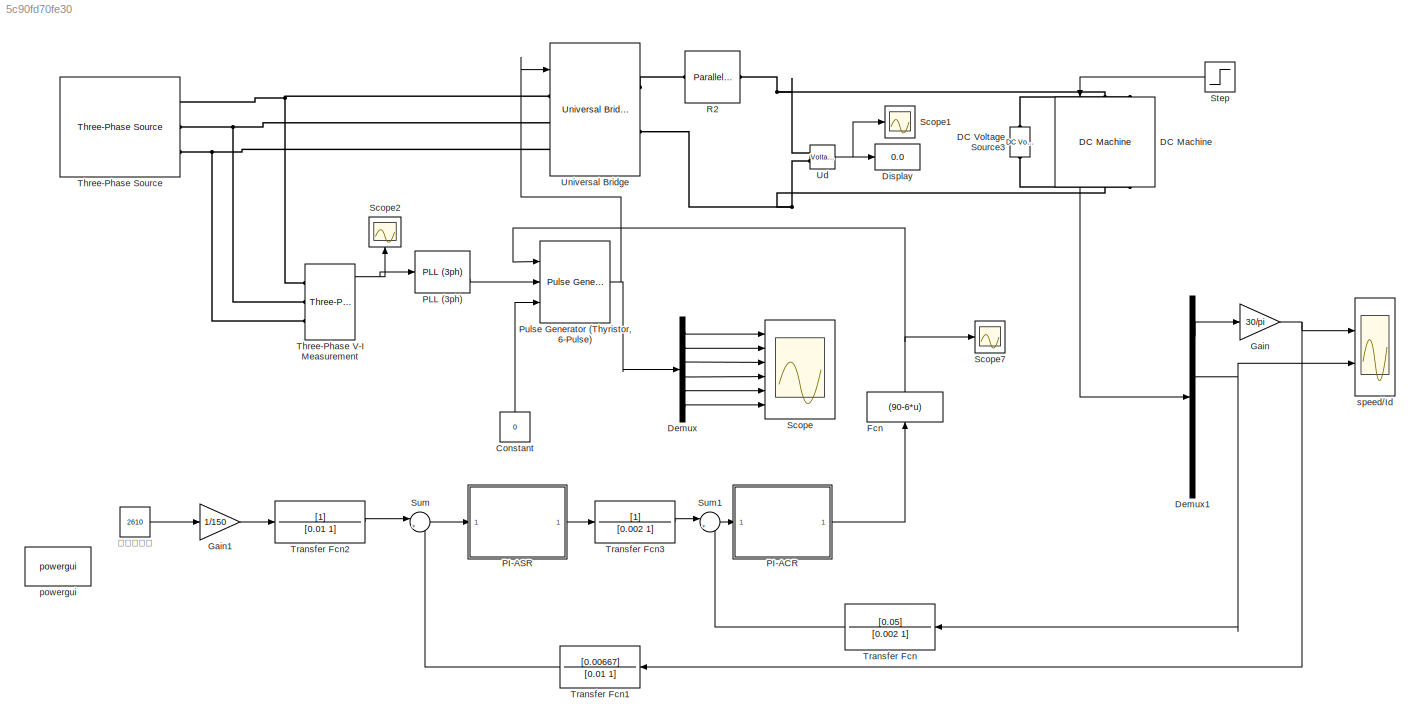
MODEL slx_5c90fd70fe30
KIND model
CONFIG AbsTol = auto
CONFIG EnableMultiTasking = on
CONFIG FixedStep = auto
CONFIG MaxStep = auto
CONFIG MinStep = auto
CONFIG RelTol = 1e-3
CONFIG SampleTimeConstraint = Unconstrained
CONFIG SolverName = ode23tb
CONFIG StartTime = 0.0
CONFIG StopTime = 6
BLOCK [Constant] Constant
  NameLocation = right
  Value = 0
BLOCK [Reference] DC Machine  REF=spsDCMachineLib/DC Machine
  NameLocation = left
  Ports = [1, 1, 0, 0, 0, 2, 2]
  SourceBlock = spsDCMachineLib/DC Machine
  SourceProductBaseCode = PS
  SourceType = DC machine
BLOCK [Reference] DC Voltage Source3  REF=spsDCVoltageSourceLib/DC Voltage Source
  NameLocation = left
  Ports = [0, 0, 0, 0, 0, 1, 1]
  SourceBlock = spsDCVoltageSourceLib/DC Voltage Source
  SourceProductBaseCode = PS
  SourceType = DC Voltage Source
BLOCK [Demux] Demux
  Outputs = 6
  Ports = [1, 6]
BLOCK [Demux] Demux1
  Ports = [1, 4]
BLOCK [Display] Display
  Decimation = 1
  Ports = [1]
BLOCK [Fcn] Fcn
  Expr = (90-6*u)
  NameLocation = right
BLOCK [Gain] Gain
  Gain = 30/pi
BLOCK [Gain] Gain1
  Gain = 1/150
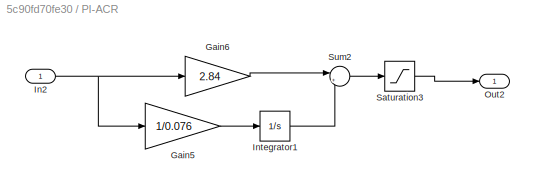
BLOCK [SubSystem] PI-ACR
  Ports = [1, 1]
  RequestExecContextInheritance = off
BLOCK [Gain] PI-ACR/Gain5
  Gain = 1/0.076
BLOCK [Gain] PI-ACR/Gain6
  Gain = 2.84
BLOCK [Inport] PI-ACR/In2
BLOCK [Integrator] PI-ACR/Integrator1
  LimitOutput = on
  LowerSaturationLimit = -12
  Ports = [1, 1]
  UpperSaturationLimit = 12
BLOCK [Outport] PI-ACR/Out2
  VectorParamsAs1DForOutWhenUnconnected = off
BLOCK [Saturate] PI-ACR/Saturation3
  LowerLimit = -10
  UpperLimit = 10
BLOCK [Sum] PI-ACR/Sum2
  Inputs = |++
  Ports = [2, 1]
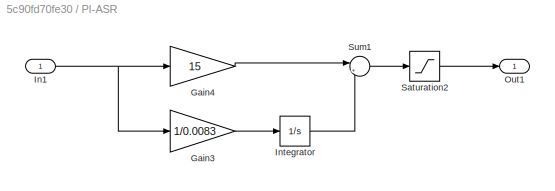
BLOCK [SubSystem] PI-ASR
  Ports = [1, 1]
  RequestExecContextInheritance = off
BLOCK [Gain] PI-ASR/Gain3
  Gain = 1/0.0083
BLOCK [Gain] PI-ASR/Gain4
  Gain = 15
BLOCK [Inport] PI-ASR/In1
BLOCK [Integrator] PI-ASR/Integrator
  LimitOutput = on
  LowerSaturationLimit = -12
  Ports = [1, 1]
  UpperSaturationLimit = 12
BLOCK [Outport] PI-ASR/Out1
  VectorParamsAs1DForOutWhenUnconnected = off
BLOCK [Saturate] PI-ASR/Saturation2
  LowerLimit = -10
  UpperLimit = 10
BLOCK [Sum] PI-ASR/Sum1
  Inputs = |++
  Ports = [2, 1]
BLOCK [Reference] PLL (3ph)  REF=spsPLL3phLib/PLL
(3ph)
  Ports = [1, 2]
  SourceBlock = spsPLL3phLib/PLL\n(3ph)
  SourceProductBaseCode = PS
  SourceType = PLL (3ph)
BLOCK [Reference] Pulse Generator (Thyristor, 6-Pulse)  REF=spsPulseGeneratorThyristor12PulseLib/Pulse Generator
(Thyristor, 12-Pulse)
  Ports = [3, 1]
  SourceBlock = spsPulseGeneratorThyristor12PulseLib/Pulse Generator\n(Thyristor, 12-Pulse)
  SourceProductBaseCode = PS
  SourceType = Pulse Generator (Thyristor)
BLOCK [Reference] R2  REF=spsParallelRLCBranchLib/Parallel RLC Branch
  AttributesFormatString = \n
  NameLocation = top
  Ports = [0, 0, 0, 0, 0, 1, 1]
  SourceBlock = spsParallelRLCBranchLib/Parallel RLC Branch
  SourceProductBaseCode = PS
  SourceType = Parallel RLC Branch
BLOCK [Scope] Scope
  Floating = off
  NumInputPorts = 6
  Ports = [6]
  ScopeSpecificationString = Simulink.scopes.TimeScopeBlockCfg('CurrentConfiguration', extmgr.ConfigurationSet(extmgr.Configuration('Core','General UI',true,'FigureColor',[1 1 1]),extmgr.Configuration('Core','Source UI',true),extmgr.Configuration('Sources','WiredSimulink',true,'DataLoggingLimitDataPoints',true,'DataLoggingSaveFormat','Array','DataLoggingDecimation','1','DataLoggingDecimateData',true),extmgr.Configuration('Vis...<+5863ch>
BLOCK [Scope] Scope1
  Floating = off
  NumInputPorts = 1
  Ports = [1]
  ScopeSpecificationString = Simulink.scopes.TimeScopeBlockCfg('CurrentConfiguration', extmgr.ConfigurationSet(extmgr.Configuration('Core','General UI',true,'FigureColor',[1 1 1]),extmgr.Configuration('Core','Source UI',true),extmgr.Configuration('Sources','WiredSimulink',true,'DataLoggingVariableName','ScopeData1','DataLoggingSaveFormat','Array','DataLoggingDecimation','1','DataLoggingDecimateData',true),extmgr.Configuration...<+2135ch>
BLOCK [Scope] Scope2
  Floating = off
  NameLocation = right
  NumInputPorts = 1
  Ports = [1]
  ScopeSpecificationString = Simulink.scopes.TimeScopeBlockCfg('CurrentConfiguration', extmgr.ConfigurationSet(extmgr.Configuration('Core','General UI',true),extmgr.Configuration('Core','Source UI',true),extmgr.Configuration('Sources','WiredSimulink',true,'DataLoggingVariableName','ScopeData2','DataLoggingLimitDataPoints',true,'DataLoggingSaveFormat','Array','DataLoggingDecimation','1','DataLoggingDecimateData',true),extmgr.C...<+1813ch>
BLOCK [Scope] Scope7
  Floating = off
  NumInputPorts = 1
  Ports = [1]
  ScopeSpecificationString = Simulink.scopes.TimeScopeBlockCfg('CurrentConfiguration', extmgr.ConfigurationSet(extmgr.Configuration('Core','General UI',true),extmgr.Configuration('Core','Source UI',true),extmgr.Configuration('Sources','WiredSimulink',true,'DataLoggingVariableName','ScopeData7','DataLoggingLimitDataPoints',true,'DataLoggingSaveFormat','Array','DataLoggingDecimation','1','DataLoggingDecimateData',true),extmgr.C...<+1638ch>
BLOCK [Step] Step
  After = 171.4
  NameLocation = top
  SampleTime = 0
  Time = 0
BLOCK [Sum] Sum
  Inputs = |+-
  Ports = [2, 1]
BLOCK [Sum] Sum1
  Inputs = |+-
  Ports = [2, 1]
BLOCK [Reference] Three-Phase Source  REF=spsThreePhaseSourceLib/Three-Phase Source
  Ports = [0, 0, 0, 0, 0, 0, 3]
  SourceBlock = spsThreePhaseSourceLib/Three-Phase Source
  SourceProductBaseCode = PS
  SourceType = Three-Phase Source
BLOCK [Reference] Three-Phase V-I Measurement  REF=spsThreePhaseVIMeasurementLib/Three-Phase
V-I Measurement
  Ports = [0, 2, 0, 0, 0, 3, 3]
  SourceBlock = spsThreePhaseVIMeasurementLib/Three-Phase\nV-I Measurement
  SourceProductBaseCode = PS
  SourceType = Three-Phase VI Measurement
BLOCK [TransferFcn] Transfer Fcn
  Denominator = [0.002 1]
  NameLocation = top
  Numerator = [0.05]
BLOCK [TransferFcn] Transfer Fcn1
  Denominator = [0.01 1]
  NameLocation = top
  Numerator = [0.00667]
BLOCK [TransferFcn] Transfer Fcn2
  Denominator = [0.01 1]
BLOCK [TransferFcn] Transfer Fcn3
  Denominator = [0.002 1]
BLOCK [Reference] Ud  REF=spsVoltageMeasurementLib/Voltage Measurement
  Ports = [0, 1, 0, 0, 0, 2]
  SourceBlock = spsVoltageMeasurementLib/Voltage Measurement
  SourceProductBaseCode = PS
  SourceType = Voltage Measurement
  UserDataPersistent = on
BLOCK [Reference] Universal Bridge  REF=spsUniversalBridgeLib/Universal Bridge
  Ports = [1, 0, 0, 0, 0, 3, 2]
  SourceBlock = spsUniversalBridgeLib/Universal Bridge
  SourceProductBaseCode = PS
  SourceType = Universal Bridge
BLOCK [Reference] powergui  REF=spspowerguiLib/powergui
  Ports = []
  Priority = 1
  SourceBlock = spspowerguiLib/powergui
  SourceProductBaseCode = PS
  SourceType = PSB option menu block
BLOCK [Scope] speed//Id
  Floating = off
  NumInputPorts = 2
  Ports = [2]
  ScopeSpecificationString = Simulink.scopes.TimeScopeBlockCfg('CurrentConfiguration', extmgr.ConfigurationSet(extmgr.Configuration('Core','General UI',true,'FigureColor',[1 1 1]),extmgr.Configuration('Core','Source UI',true),extmgr.Configuration('Sources','WiredSimulink',true,'DataLoggingVariableName','ScopeData1'),extmgr.Configuration('Visuals','Time Domain',true,'SerializedDisplays',{struct('MinYLimReal','-341.37484','MaxY...<+2221ch>
BLOCK [Constant] 转速参考值
  Value = 2610
LINE Constant:1 -> Pulse Generator (Thyristor, 6-Pulse):3
LINE DC Machine:1 -> Demux1:1
LINE Demux1:1 -> Gain:1
NET Demux1:2 -> Transfer Fcn:1, speed//Id:2
LINE Demux:1 -> Scope:1
LINE Demux:2 -> Scope:2
LINE Demux:3 -> Scope:3
LINE Demux:4 -> Scope:4
LINE Demux:5 -> Scope:5
LINE Demux:6 -> Scope:6
NET Fcn:1 -> Pulse Generator (Thyristor, 6-Pulse):1, Scope7:1
LINE Gain1:1 -> Transfer Fcn2:1
NET Gain:1 -> Transfer Fcn1:1, speed//Id:1
LINE PI-ACR/Gain5:1 -> PI-ACR/Integrator1:1
LINE PI-ACR/Gain6:1 -> PI-ACR/Sum2:1
NET PI-ACR/In2:1 -> PI-ACR/Gain5:1, PI-ACR/Gain6:1
LINE PI-ACR/Integrator1:1 -> PI-ACR/Sum2:2
LINE PI-ACR/Saturation3:1 -> PI-ACR/Out2:1
LINE PI-ACR/Sum2:1 -> PI-ACR/Saturation3:1
LINE PI-ACR:1 -> Fcn:1
LINE PI-ASR/Gain3:1 -> PI-ASR/Integrator:1
LINE PI-ASR/Gain4:1 -> PI-ASR/Sum1:1
NET PI-ASR/In1:1 -> PI-ASR/Gain3:1, PI-ASR/Gain4:1
LINE PI-ASR/Integrator:1 -> PI-ASR/Sum1:2
LINE PI-ASR/Saturation2:1 -> PI-ASR/Out1:1
LINE PI-ASR/Sum1:1 -> PI-ASR/Saturation2:1
LINE PI-ASR:1 -> Transfer Fcn3:1
LINE PLL (3ph):2 -> Pulse Generator (Thyristor, 6-Pulse):2
NET Pulse Generator (Thyristor, 6-Pulse):1 -> Demux:1, Universal Bridge:1
LINE Step:1 -> DC Machine:1
LINE Sum1:1 -> PI-ACR:1
LINE Sum:1 -> PI-ASR:1
NET Three-Phase V-I Measurement:1 -> PLL (3ph):1, Scope2:1
LINE Transfer Fcn1:1 -> Sum:2
LINE Transfer Fcn2:1 -> Sum:1
LINE Transfer Fcn3:1 -> Sum1:1
LINE Transfer Fcn:1 -> Sum1:2
NET Ud:1 -> Display:1, Scope1:1
LINE 转速参考值:1 -> Gain1:1
PNET net1: DC Machine:LConn1 -- R2:LConn1 -- Ud:LConn1
PLINE DC Machine:LConn2 -- DC Voltage Source3:RConn1
PNET net2: DC Machine:RConn1 -- Ud:LConn2 -- Universal Bridge:RConn2
PLINE DC Machine:RConn2 -- DC Voltage Source3:LConn1
PLINE R2:RConn1 -- Universal Bridge:RConn1
PNET net3: Three-Phase Source:RConn1 -- Three-Phase V-I Measurement:LConn1 -- Universal Bridge:LConn1
PNET net4: Three-Phase Source:RConn2 -- Three-Phase V-I Measurement:LConn2 -- Universal Bridge:LConn2
PNET net5: Three-Phase Source:RConn3 -- Three-Phase V-I Measurement:LConn3 -- Universal Bridge:LConn3
note: NET lines group one-source signal fan-out (src -> all destinations, sorted); 1:1 wires keep LINE; PNET lines group multi-terminal physical nets as a canonical sorted terminal list (undirected conserving connections); 2-terminal nets keep the pairwise PLINE form
